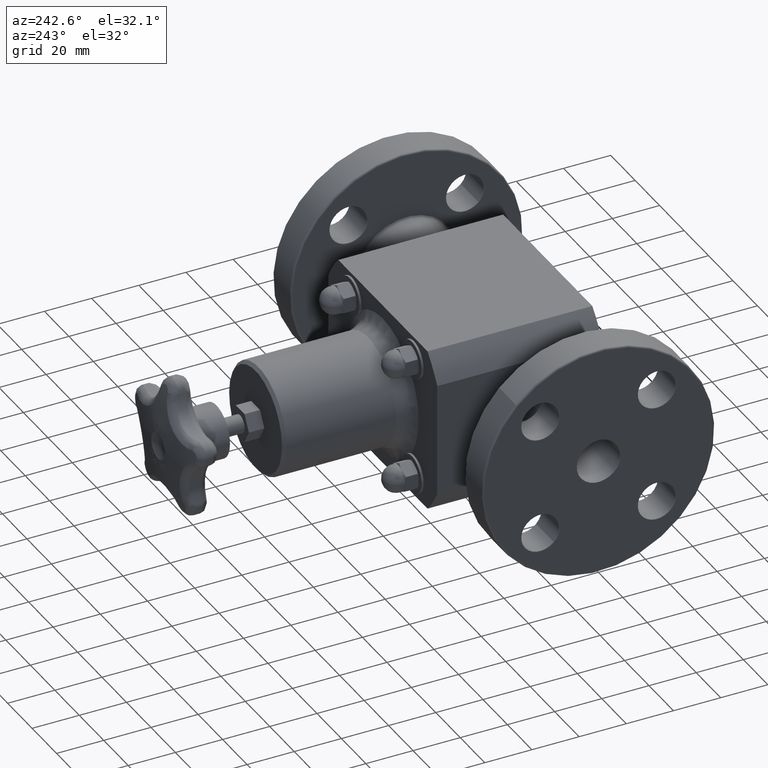
[diagram: clean part render]
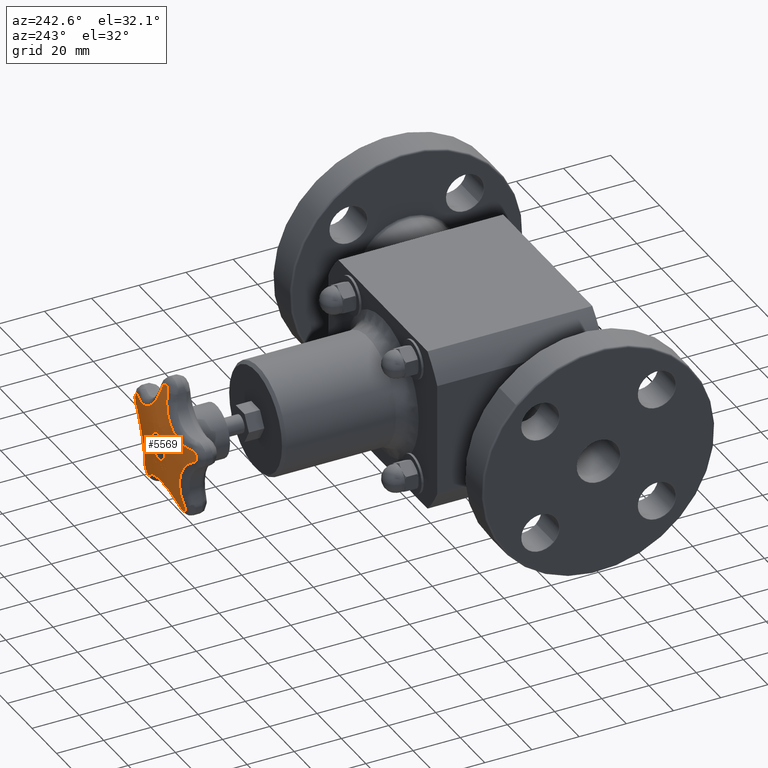
[diagram: same view with one face highlighted and labeled with its STEP entity id]
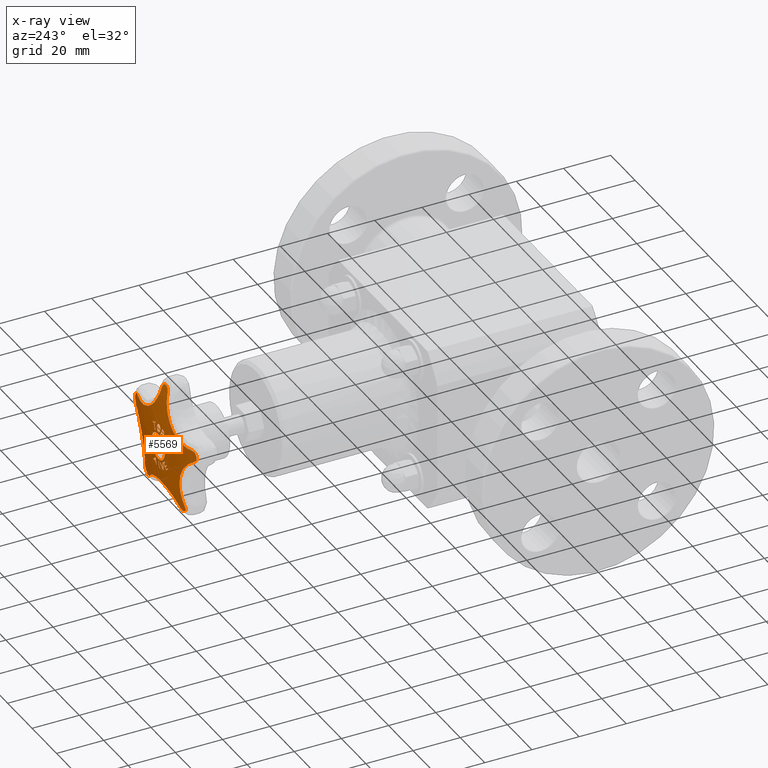
[diagram: x-ray of the same camera — body ghosted, the highlighted face saturated]
A machine part, auxiliary view. The second image highlights one B-rep face of the part: STEP entity #5569.
The next image is the same camera in x-ray: the body ghosted, the highlighted face saturated — about 0% of this face is hidden behind the body in this view.
In plain terms, the highlighted spherical surface has radius 101.6 mm.
Its self-contained STEP definition (entity closure, byte-faithful):
#2377=CARTESIAN_POINT('',(0.085862900185211,6.492578033837449,-0.334336098257463));
#2378=VERTEX_POINT('',#2377);
#2385=CARTESIAN_POINT('',(0.080862571524474,6.490070388788941,-0.364135061299997));
#2386=VERTEX_POINT('',#2385);
#2387=CARTESIAN_POINT('',(0.138077283113868,2.507499999999999,-0.023169658459773));
#2388=DIRECTION('',(0.986211736099962,-3.834945E-035,-0.165488403154721));
#2389=DIRECTION('',(0.165488403154721,2.285398E-034,0.986211736099962));
#2390=AXIS2_PLACEMENT_3D('',#2387,#2388,#2389);
#2391=CIRCLE('',#2390,3.997548977913186);
#2392=EDGE_CURVE('',#2386,#2378,#2391,.T.);
#2410=CARTESIAN_POINT('',(0.066931145986275,6.490560100352849,-0.361597094393902));
#2411=VERTEX_POINT('',#2410);
#2412=CARTESIAN_POINT('',(-0.061608234058828,2.507499999999999,-0.338180345563004));
#2413=DIRECTION('',(-0.179225881333302,0.0,-0.983807950496590));
#2414=DIRECTION('',(0.0,-1.0,0.0));
#2415=AXIS2_PLACEMENT_3D('',#2412,#2413,#2414);
#2416=CIRCLE('',#2415,3.985202438944732);
#2417=EDGE_CURVE('',#2411,#2386,#2416,.T.);
#2435=CARTESIAN_POINT('',(0.086359266902230,6.499345606544357,-0.240230577846814));
#2436=VERTEX_POINT('',#2435);
#2437=CARTESIAN_POINT('',(0.121696449326066,2.507499999999999,-0.019480935927100));
#2438=DIRECTION('',(-0.987428598717144,3.662935E-035,0.158065690254078));
#2439=DIRECTION('',(-0.158065690254078,-2.288218E-034,-0.987428598717144));
#2440=AXIS2_PLACEMENT_3D('',#2437,#2438,#2439);
#2441=CIRCLE('',#2440,3.998100857576862);
#2442=EDGE_CURVE('',#2436,#2411,#2441,.T.);
#2460=CARTESIAN_POINT('',(0.178491128782160,6.490560100243761,-0.321516958794137));
#2461=VERTEX_POINT('',#2460);
#2462=CARTESIAN_POINT('',(-0.081379549747351,2.507499999999999,-0.092237461550079));
#2463=DIRECTION('',(0.661592173204071,0.0,0.749863851879202));
#2464=DIRECTION('',(0.0,1.0,0.0));
#2465=AXIS2_PLACEMENT_3D('',#2462,#2463,#2464);
#2466=CIRCLE('',#2465,3.998108255108873);
#2467=EDGE_CURVE('',#2461,#2436,#2466,.T.);
#2503=CARTESIAN_POINT('',(0.169360113250167,6.490070388702392,-0.332340564889026));
#2504=VERTEX_POINT('',#2503);
#2505=CARTESIAN_POINT('',(0.262739148876333,2.507499999999999,-0.221652121134103));
#2506=DIRECTION('',(0.764340282334966,0.0,-0.644813099122609));
#2507=DIRECTION('',(0.0,-1.0,0.0));
#2508=AXIS2_PLACEMENT_3D('',#2505,#2506,#2507);
#2509=CIRCLE('',#2508,3.985202438627741);
#2510=EDGE_CURVE('',#2504,#2461,#2509,.T.);
#2528=CARTESIAN_POINT('',(0.146539084429404,6.492578033778148,-0.312536976105990));
#2529=VERTEX_POINT('',#2528);
#2530=CARTESIAN_POINT('',(-0.091762441742962,2.507499999999999,-0.105744133077216));
#2531=DIRECTION('',(-0.655409775395539,0.0,-0.755273477831686));
#2532=DIRECTION('',(0.0,-1.0,0.0));
#2533=AXIS2_PLACEMENT_3D('',#2530,#2531,#2532);
#2534=CIRCLE('',#2533,3.997548978137118);
#2535=EDGE_CURVE('',#2529,#2504,#2534,.T.);
#2553=CARTESIAN_POINT('',(0.116200988857743,2.507499999999999,-0.323436538421051));
#2554=DIRECTION('',(0.338111065893150,0.0,-0.941106214579735));
#2555=DIRECTION('',(0.0,-1.0,0.0));
#2556=AXIS2_PLACEMENT_3D('',#2553,#2554,#2555);
#2557=CIRCLE('',#2556,3.985208418113498);
#2558=EDGE_CURVE('',#2378,#2529,#2557,.T.);
#2588=CARTESIAN_POINT('',(0.037834369669133,6.498204436490725,0.269901206082852));
#2589=VERTEX_POINT('',#2588);
#2596=CARTESIAN_POINT('',(-0.000813251585510,6.499463335806677,0.253432563411025));
#2597=VERTEX_POINT('',#2596);
#2598=CARTESIAN_POINT('',(-0.000813251585510,6.499463335806677,0.253432563411025));
#2599=CARTESIAN_POINT('',(0.004822604549693,6.499463267161416,0.253451729844247));
#2600=CARTESIAN_POINT('',(0.010434056143418,6.499408968571549,0.254137147028971));
#2601=CARTESIAN_POINT('',(0.019829419967589,6.499191776701514,0.256945437338924));
#2602=CARTESIAN_POINT('',(0.023603879105451,6.499063271092423,0.258616838560289));
#2603=CARTESIAN_POINT('',(0.031162797321007,6.498707503911847,0.263275608997046));
#2604=CARTESIAN_POINT('',(0.034718544485056,6.498475224151669,0.266334166676061));
#2605=CARTESIAN_POINT('',(0.037834369669133,6.498204436490725,0.269901206082852));
#2606=B_SPLINE_CURVE_WITH_KNOTS('',3,(#2598,#2599,#2600,#2601,#2602,#2603,#2604,#2605),.UNSPECIFIED.,.F.,.U.,(4,2,2,4),(0.0,0.042945472093289,0.074729953679080,0.111130521126663),.UNSPECIFIED.);
#2607=EDGE_CURVE('',#2597,#2589,#2606,.T.);
#2640=CARTESIAN_POINT('',(0.051972176469609,6.494648590963243,0.316140801626154));
#2641=VERTEX_POINT('',#2640);
#2648=CARTESIAN_POINT('',(0.037834369669133,6.498204436490725,0.269901206082852));
#2649=CARTESIAN_POINT('',(0.041442739555291,6.497886429832898,0.274097371770597));
#2650=CARTESIAN_POINT('',(0.044216393332118,6.497526143654532,0.278867364485766));
#2651=CARTESIAN_POINT('',(0.051175872144373,6.496247534047897,0.295695352673442));
#2652=CARTESIAN_POINT('',(0.052000310715352,6.495304176149833,0.307867975918427));
#2653=CARTESIAN_POINT('',(0.051972176469609,6.494648590963243,0.316140801626154));
#2654=B_SPLINE_CURVE_WITH_KNOTS('',3,(#2648,#2649,#2650,#2651,#2652,#2653),.UNSPECIFIED.,.F.,.U.,(4,2,4),(0.0,0.042240697270331,0.139117363804144),.UNSPECIFIED.);
#2655=EDGE_CURVE('',#2589,#2641,#2654,.T.);
#2681=CARTESIAN_POINT('',(0.037422621985947,6.490875481075144,0.362380082417699));
#2682=VERTEX_POINT('',#2681);
#2689=CARTESIAN_POINT('',(0.051972176469609,6.494648590963243,0.316140801626154));
#2690=CARTESIAN_POINT('',(0.051955724861658,6.494265235014526,0.320978368143261));
#2691=CARTESIAN_POINT('',(0.051649887753166,6.493873160763517,0.325860197870603));
#2692=CARTESIAN_POINT('',(0.050134657362984,6.493046460787355,0.336059631335726));
#2693=CARTESIAN_POINT('',(0.048942330808374,6.492679768741239,0.340537076610657));
#2694=CARTESIAN_POINT('',(0.045132529339032,6.491814489793273,0.351068251626343));
#2695=CARTESIAN_POINT('',(0.041865078415885,6.491314249290123,0.357098260899482));
#2696=CARTESIAN_POINT('',(0.037422621985947,6.490875481075144,0.362380082417699));
#2697=B_SPLINE_CURVE_WITH_KNOTS('',3,(#2689,#2690,#2691,#2692,#2693,#2694,#2695,#2696),.UNSPECIFIED.,.F.,.U.,(4,2,2,4),(0.0,0.036978033263811,0.078812994269673,0.145814753845857),.UNSPECIFIED.);
#2698=EDGE_CURVE('',#2641,#2682,#2697,.T.);
#2726=CARTESIAN_POINT('',(-0.001238542349022,6.489552846207735,0.378488567887761));
#2727=VERTEX_POINT('',#2726);
#2734=CARTESIAN_POINT('',(0.037422621985947,6.490875481075145,0.362380082417699));
#2735=CARTESIAN_POINT('',(0.034954443929450,6.490644692501276,0.365171856276013));
#2736=CARTESIAN_POINT('',(0.032197988751061,6.490440415363388,0.367645041378230));
#2737=CARTESIAN_POINT('',(0.025433171661516,6.490054380883788,0.372335971569167));
#2738=CARTESIAN_POINT('',(0.021382576080450,6.489892027163673,0.374321631798851));
#2739=CARTESIAN_POINT('',(0.014161922593872,6.489697132621298,0.376716303028089));
#2740=CARTESIAN_POINT('',(0.011126297743766,6.489640822220747,0.377412789087582));
#2741=CARTESIAN_POINT('',(0.004967186895549,6.489568654773589,0.378304358121797));
#2742=CARTESIAN_POINT('',(0.001864839243269,6.489552808314178,0.378499121875412));
#2743=CARTESIAN_POINT('',(-0.001238542349022,6.489552846207735,0.378488567887761));
#2744=B_SPLINE_CURVE_WITH_KNOTS('',3,(#2734,#2735,#2736,#2737,#2738,#2739,#2740,#2741,#2742,#2743),.UNSPECIFIED.,.F.,.U.,(4,2,2,2,4),(0.0,0.028449418287417,0.062797366334246,0.086669104210055,0.110412733579470),.UNSPECIFIED.);
#2745=EDGE_CURVE('',#2682,#2727,#2744,.T.);
#2931=CARTESIAN_POINT('',(-0.039886494311879,6.490875481072099,0.362117169387378));
#2932=VERTEX_POINT('',#2931);
#2939=CARTESIAN_POINT('',(-0.001238542349022,6.489552846207735,0.378488567887761));
#2940=CARTESIAN_POINT('',(-0.006745334190294,6.489552913447912,0.378469840376704));
#2941=CARTESIAN_POINT('',(-0.012222719771290,6.489603190919957,0.377803010782852));
#2942=CARTESIAN_POINT('',(-0.022169110236763,6.489836259202794,0.374873454632416));
#2943=CARTESIAN_POINT('',(-0.025880772573738,6.489983982792515,0.373045650941543));
#2944=CARTESIAN_POINT('',(-0.032976239086434,6.490326456239560,0.368822005397033));
#2945=CARTESIAN_POINT('',(-0.036677483482774,6.490576120274293,0.365763676003977));
#2946=CARTESIAN_POINT('',(-0.039886494311879,6.490875481072099,0.362117169387378));
#2947=B_SPLINE_CURVE_WITH_KNOTS('',3,(#2939,#2940,#2941,#2942,#2943,#2944,#2945,#2946),.UNSPECIFIED.,.F.,.U.,(4,2,2,4),(0.0,0.041961996486355,0.079020325656231,0.132098515306939),.UNSPECIFIED.);
#2948=EDGE_CURVE('',#2727,#2932,#2947,.T.);
#2974=CARTESIAN_POINT('',(-0.054121214575585,6.494648590959068,0.315779998964419));
#2975=VERTEX_POINT('',#2974);
#2982=CARTESIAN_POINT('',(-0.039886494311879,6.490875481072099,0.362117169387378));
#2983=CARTESIAN_POINT('',(-0.043384531614640,6.491215540252459,0.357991135129826));
#2984=CARTESIAN_POINT('',(-0.046110522559888,6.491601304155911,0.353327026506887));
#2985=CARTESIAN_POINT('',(-0.049655140330850,6.492287322165349,0.344989572698873));
#2986=CARTESIAN_POINT('',(-0.051408401706368,6.492680648419752,0.340203251638015));
#2987=CARTESIAN_POINT('',(-0.053714336300565,6.493694761028934,0.327721858865083));
#2988=CARTESIAN_POINT('',(-0.054141415064118,6.494177878462815,0.321719917253611));
#2989=CARTESIAN_POINT('',(-0.054121214575585,6.494648590959069,0.315779998964419));
#2990=B_SPLINE_CURVE_WITH_KNOTS('',3,(#2982,#2983,#2984,#2985,#2986,#2987,#2988,#2989),.UNSPECIFIED.,.F.,.U.,(4,2,2,4),(0.0,0.041300163745689,0.069239721804254,0.093823977580811),.UNSPECIFIED.);
#2991=EDGE_CURVE('',#2932,#2975,#2990,.T.);
#3017=CARTESIAN_POINT('',(-0.039571990800137,6.498205379604828,0.269637962344318));
#3018=VERTEX_POINT('',#3017);
#3025=CARTESIAN_POINT('',(-0.054121214575585,6.494648590959070,0.315779998964419));
#3026=CARTESIAN_POINT('',(-0.054104973183962,6.495027048439478,0.311004246190809));
#3027=CARTESIAN_POINT('',(-0.053791585087129,6.495402200783876,0.306211457940531));
#3028=CARTESIAN_POINT('',(-0.052375519715094,6.496143410979319,0.296655576028873));
#3029=CARTESIAN_POINT('',(-0.051258684496628,6.496507467278865,0.291916990166382));
#3030=CARTESIAN_POINT('',(-0.047377403862622,6.497352193214817,0.280860112488070));
#3031=CARTESIAN_POINT('',(-0.044132654634130,6.497811607413357,0.274796561836271));
#3032=CARTESIAN_POINT('',(-0.039571990800137,6.498205379604828,0.269637962344318));
#3033=B_SPLINE_CURVE_WITH_KNOTS('',3,(#3025,#3026,#3027,#3028,#3029,#3030,#3031,#3032),.UNSPECIFIED.,.F.,.U.,(4,2,2,4),(0.0,0.036505533163791,0.073822024429602,0.126837533468264),.UNSPECIFIED.);
#3034=EDGE_CURVE('',#2975,#3018,#3033,.T.);
#3061=CARTESIAN_POINT('',(-0.039571990800137,6.498205379604828,0.269637962344318));
#3062=CARTESIAN_POINT('',(-0.036994618978134,6.498426649193219,0.266741374653484));
#3063=CARTESIAN_POINT('',(-0.034125944551199,6.498624226597590,0.264155087526020));
#3064=CARTESIAN_POINT('',(-0.028127958870894,6.498941902899273,0.260022999604724));
#3065=CARTESIAN_POINT('',(-0.024119800176987,6.499119835051819,0.257727462092390));
#3066=CARTESIAN_POINT('',(-0.015614631027444,6.499330482346445,0.255058899401250));
#3067=CARTESIAN_POINT('',(-0.012615830697533,6.499382732516449,0.254406267976287));
#3068=CARTESIAN_POINT('',(-0.006666959610788,6.499448427235688,0.253597873925736));
#3069=CARTESIAN_POINT('',(-0.003741704705223,6.499463371475511,0.253422604320576));
#3070=CARTESIAN_POINT('',(-0.000813251586146,6.499463335806677,0.253432563411023));
#3071=B_SPLINE_CURVE_WITH_KNOTS('',3,(#3061,#3062,#3063,#3064,#3065,#3066,#3067,#3068,#3069,#3070),.UNSPECIFIED.,.F.,.U.,(4,2,2,2,4),(0.0,0.029592715149351,0.055552496815722,0.069221283901438,0.082236559754027),.UNSPECIFIED.);
#3072=EDGE_CURVE('',#3018,#2597,#3071,.T.);
#3346=CARTESIAN_POINT('',(-0.247118300170064,6.494930202010448,-0.198325313099392));
#3347=VERTEX_POINT('',#3346);
#3354=CARTESIAN_POINT('',(-0.207827658530652,6.495059962457521,-0.237008882018031));
#3355=VERTEX_POINT('',#3354);
#3356=CARTESIAN_POINT('',(-0.220785948703934,2.507499999999999,-0.224250808083116));
#3357=DIRECTION('',(0.701580297701931,0.0,0.712590405405847));
#3358=DIRECTION('',(0.0,1.0,0.0));
#3359=AXIS2_PLACEMENT_3D('',#3356,#3357,#3358);
#3360=CIRCLE('',#3359,3.987601426914302);
#3361=EDGE_CURVE('',#3355,#3347,#3360,.T.);
#3379=CARTESIAN_POINT('',(-0.176580613442933,6.498324840990898,-0.205271467783727));
#3380=VERTEX_POINT('',#3379);
#3381=CARTESIAN_POINT('',(0.012958290173282,2.507499999999999,-0.012758073934915));
#3382=DIRECTION('',(-0.712590405405847,0.0,0.701580297701931));
#3383=DIRECTION('',(0.0,1.0,0.0));
#3384=AXIS2_PLACEMENT_3D('',#3381,#3382,#3383);
#3385=CIRCLE('',#3384,3.999958664069575);
#3386=EDGE_CURVE('',#3380,#3355,#3385,.T.);
#3404=CARTESIAN_POINT('',(-0.218712377317294,6.498156275729467,-0.163790674304833));
#3405=VERTEX_POINT('',#3404);
#3406=CARTESIAN_POINT('',(-0.189538903616215,2.507499999999999,-0.192513393848812));
#3407=DIRECTION('',(-0.701580297701931,0.0,-0.712590405405848));
#3408=DIRECTION('',(0.0,-1.0,0.0));
#3409=AXIS2_PLACEMENT_3D('',#3406,#3407,#3408);
#3410=CIRCLE('',#3409,3.990866271526118);
#3411=EDGE_CURVE('',#3405,#3380,#3410,.T.);
#3429=CARTESIAN_POINT('',(-0.208751528883217,6.499092069880929,-0.153673507321845));
#3430=VERTEX_POINT('',#3429);
#3431=CARTESIAN_POINT('',(-0.029173473701078,2.507499999999999,0.028722719543979));
#3432=DIRECTION('',(-0.712590405405848,0.0,0.701580297701931));
#3433=DIRECTION('',(0.0,1.0,0.0));
#3434=AXIS2_PLACEMENT_3D('',#3431,#3432,#3433);
#3435=CIRCLE('',#3434,3.999790483739644);
#3436=EDGE_CURVE('',#3430,#3405,#3435,.T.);
#3454=CARTESIAN_POINT('',(-0.155255276069062,6.499156082813489,-0.206343199041756));
#3455=VERTEX_POINT('',#3454);
#3456=CARTESIAN_POINT('',(-0.179578055182138,2.507499999999999,-0.182396226865824));
#3457=DIRECTION('',(0.701580297701931,0.0,0.712590405405847));
#3458=DIRECTION('',(0.0,1.0,0.0));
#3459=AXIS2_PLACEMENT_3D('',#3456,#3457,#3458);
#3460=CIRCLE('',#3459,3.991802016448476);
#3461=EDGE_CURVE('',#3455,#3430,#3460,.T.);
#3479=CARTESIAN_POINT('',(-0.239444912833791,6.489646073155507,-0.291854048747284));
#3480=VERTEX_POINT('',#3479);
#3481=CARTESIAN_POINT('',(0.024322779113077,2.507499999999999,-0.023946972175932));
#3482=DIRECTION('',(0.712590405405848,0.0,-0.701580297701931));
#3483=DIRECTION('',(0.0,-1.0,0.0));
#3484=AXIS2_PLACEMENT_3D('',#3481,#3482,#3483);
#3485=CIRCLE('',#3484,3.999854365466301);
#3486=EDGE_CURVE('',#3480,#3455,#3485,.T.);
#3504=CARTESIAN_POINT('',(-0.292941165647946,6.489581907347238,-0.239184357027373));
#3505=VERTEX_POINT('',#3504);
#3506=CARTESIAN_POINT('',(-0.263767691946867,2.507499999999999,-0.267907076571351));
#3507=DIRECTION('',(-0.701580297701931,0.0,-0.712590405405847));
#3508=DIRECTION('',(0.0,-1.0,0.0));
#3509=AXIS2_PLACEMENT_3D('',#3506,#3507,#3508);
#3510=CIRCLE('',#3509,3.982292355290859);
#3511=EDGE_CURVE('',#3505,#3480,#3510,.T.);
#3529=CARTESIAN_POINT('',(-0.282980317213869,6.490896837187415,-0.229067190044385));
#3530=VERTEX_POINT('',#3529);
#3531=CARTESIAN_POINT('',(-0.029173473701079,2.507499999999999,0.028722719543979));
#3532=DIRECTION('',(-0.712590405405848,0.0,0.701580297701931));
#3533=DIRECTION('',(0.0,1.0,0.0));
#3534=AXIS2_PLACEMENT_3D('',#3531,#3532,#3533);
#3535=CIRCLE('',#3534,3.999790483739644);
#3536=EDGE_CURVE('',#3530,#3505,#3535,.T.);
#3554=CARTESIAN_POINT('',(-0.240848553339509,6.491065709633236,-0.270547983523279));
#3555=VERTEX_POINT('',#3554);
#3556=CARTESIAN_POINT('',(-0.253806843512791,2.507499999999999,-0.257789909588363));
#3557=DIRECTION('',(0.701580297701931,0.0,0.712590405405847));
#3558=DIRECTION('',(0.0,1.0,0.0));
#3559=AXIS2_PLACEMENT_3D('',#3556,#3557,#3558);
#3560=CIRCLE('',#3559,3.983607215665281);
#3561=EDGE_CURVE('',#3555,#3530,#3560,.T.);
#3579=CARTESIAN_POINT('',(-0.217788506964729,6.493914037971874,-0.247126049001019));
#3580=VERTEX_POINT('',#3579);
#3581=CARTESIAN_POINT('',(0.012958290173282,2.507499999999999,-0.012758073934915));
#3582=DIRECTION('',(-0.712590405405848,0.0,0.701580297701930));
#3583=DIRECTION('',(0.0,1.0,0.0));
#3584=AXIS2_PLACEMENT_3D('',#3581,#3582,#3583);
#3585=CIRCLE('',#3584,3.999958664069575);
#3586=EDGE_CURVE('',#3580,#3555,#3585,.T.);
#3604=CARTESIAN_POINT('',(-0.257079148604141,6.493784240222976,-0.208442480082380));
#3605=VERTEX_POINT('',#3604);
#3606=CARTESIAN_POINT('',(-0.230746797138011,2.507499999999999,-0.234367975066104));
#3607=DIRECTION('',(-0.701580297701931,0.0,-0.712590405405848));
#3608=DIRECTION('',(0.0,-1.0,0.0));
#3609=AXIS2_PLACEMENT_3D('',#3606,#3607,#3608);
#3610=CIRCLE('',#3609,3.986455514347798);
#3611=EDGE_CURVE('',#3605,#3580,#3610,.T.);
#3629=CARTESIAN_POINT('',(-0.026332351466130,2.507499999999999,0.025925494983725));
#3630=DIRECTION('',(-0.712590405405848,0.0,0.701580297701931));
#3631=DIRECTION('',(0.0,1.0,0.0));
#3632=AXIS2_PLACEMENT_3D('',#3629,#3630,#3631);
#3633=CIRCLE('',#3632,3.999829305854953);
#3634=EDGE_CURVE('',#3347,#3605,#3633,.T.);
#3656=CARTESIAN_POINT('',(0.104679989358764,6.489501420719623,0.364289425065761));
#3657=VERTEX_POINT('',#3656);
#3664=CARTESIAN_POINT('',(0.193260657033255,6.489499064924951,0.326088585172621));
#3665=VERTEX_POINT('',#3664);
#3666=CARTESIAN_POINT('',(0.148881029224559,2.507499999999999,0.345227513574776));
#3667=DIRECTION('',(0.395999965100261,0.0,0.918250525532435));
#3668=DIRECTION('',(0.0,1.0,0.0));
#3669=AXIS2_PLACEMENT_3D('',#3666,#3667,#3668);
#3670=CIRCLE('',#3669,3.982292355290859);
#3671=EDGE_CURVE('',#3665,#3657,#3670,.T.);
#3696=CARTESIAN_POINT('',(0.099057688326105,6.490816377129185,0.351252350992701));
#3697=VERTEX_POINT('',#3696);
#3704=CARTESIAN_POINT('',(-0.044201039865794,2.507499999999999,0.019061911490985));
#3705=DIRECTION('',(-0.918250525532435,9.176705E-035,0.395999965100260));
#3706=DIRECTION('',(-0.395999965100260,-2.127908E-034,-0.918250525532435));
#3707=AXIS2_PLACEMENT_3D('',#3704,#3705,#3706);
#3708=CIRCLE('',#3707,3.999710353463748);
#3709=EDGE_CURVE('',#3657,#3697,#3708,.T.);
#3729=CARTESIAN_POINT('',(0.136025829875741,6.491099428197434,0.335309661763104));
#3730=VERTEX_POINT('',#3729);
#3737=CARTESIAN_POINT('',(0.143258728191899,2.507499999999999,0.332190439501716));
#3738=DIRECTION('',(-0.395999965100261,0.0,-0.918250525532434));
#3739=DIRECTION('',(0.0,-1.0,0.0));
#3740=AXIS2_PLACEMENT_3D('',#3737,#3738,#3739);
#3741=CIRCLE('',#3740,3.983607215665281);
#3742=EDGE_CURVE('',#3697,#3730,#3741,.T.);
#3762=CARTESIAN_POINT('',(0.094128134509071,6.499294244967611,0.238156671410437));
#3763=VERTEX_POINT('',#3762);
#3770=CARTESIAN_POINT('',(-0.007232898316158,2.507499999999999,0.003119222261389));
#3771=DIRECTION('',(-0.918250525532435,9.176705E-035,0.395999965100261));
#3772=DIRECTION('',(-0.395999965100261,-2.127908E-034,-0.918250525532435));
#3773=AXIS2_PLACEMENT_3D('',#3770,#3771,#3772);
#3774=CIRCLE('',#3773,3.999992244446786);
#3775=EDGE_CURVE('',#3730,#3763,#3774,.T.);
#3795=CARTESIAN_POINT('',(0.108772519084289,6.499293856457105,0.231841209976490));
#3796=VERTEX_POINT('',#3795);
#3803=CARTESIAN_POINT('',(0.101361032825230,2.507499999999999,0.235037449149048));
#3804=DIRECTION('',(-0.395999965100260,0.0,-0.918250525532435));
#3805=DIRECTION('',(0.0,-1.0,0.0));
#3806=AXIS2_PLACEMENT_3D('',#3803,#3804,#3805);
#3807=CIRCLE('',#3806,3.991802016448476);
#3808=EDGE_CURVE('',#3763,#3796,#3807,.T.);
#3828=CARTESIAN_POINT('',(0.150670214450959,6.491099038887708,0.328994200329158));
#3829=VERTEX_POINT('',#3828);
#3836=CARTESIAN_POINT('',(0.007411486259060,2.507499999999999,-0.003196239172558));
#3837=DIRECTION('',(0.918250525532434,-9.176705E-035,-0.395999965100261));
#3838=DIRECTION('',(0.395999965100261,2.127908E-034,0.918250525532434));
#3839=AXIS2_PLACEMENT_3D('',#3836,#3837,#3838);
#3840=CIRCLE('',#3839,3.999991856732535);
#3841=EDGE_CURVE('',#3796,#3829,#3840,.T.);
#3861=CARTESIAN_POINT('',(0.187638356000596,6.490814022112200,0.313051511099561));
#3862=VERTEX_POINT('',#3861);
#3869=CARTESIAN_POINT('',(0.143258728191899,2.507499999999999,0.332190439501716));
#3870=DIRECTION('',(-0.395999965100261,0.0,-0.918250525532435));
#3871=DIRECTION('',(0.0,-1.0,0.0));
#3872=AXIS2_PLACEMENT_3D('',#3869,#3870,#3871);
#3873=CIRCLE('',#3872,3.983607215665281);
#3874=EDGE_CURVE('',#3829,#3862,#3873,.T.);
#3893=CARTESIAN_POINT('',(0.044379627808697,2.507499999999999,-0.019138928402155));
#3894=DIRECTION('',(0.918250525532435,-9.176705E-035,-0.395999965100259));
#3895=DIRECTION('',(0.395999965100259,2.127908E-034,0.918250525532435));
#3896=AXIS2_PLACEMENT_3D('',#3893,#3894,#3895);
#3897=CIRCLE('',#3896,3.999708008099489);
#3898=EDGE_CURVE('',#3862,#3665,#3897,.T.);
#3997=CARTESIAN_POINT('',(-0.132776476717596,6.499152316888536,-0.221545002897484));
#3998=VERTEX_POINT('',#3997);
#4005=CARTESIAN_POINT('',(-0.141106922486269,6.491658741024817,-0.326447488490870));
#4006=VERTEX_POINT('',#4005);
#4007=CARTESIAN_POINT('',(-0.114461481346885,2.507499999999999,0.009089538322841));
#4008=DIRECTION('',(0.996861755361221,-1.834463E-035,-0.079162116559279));
#4009=DIRECTION('',(0.079162116559279,2.310078E-034,0.996861755361221));
#4010=AXIS2_PLACEMENT_3D('',#4007,#4008,#4009);
#4011=CIRCLE('',#4010,3.998351654067081);
#4012=EDGE_CURVE('',#4006,#3998,#4011,.T.);
#4030=CARTESIAN_POINT('',(-0.071391562909479,6.499171847508762,-0.247909472492114));
#4031=VERTEX_POINT('',#4030);
#4032=CARTESIAN_POINT('',(0.083150511259561,2.507499999999999,-0.073809704991097));
#4033=DIRECTION('',(-0.747864056465855,0.0,0.663851905959784));
#4034=DIRECTION('',(0.0,1.0,0.0));
#4035=AXIS2_PLACEMENT_3D('',#4032,#4033,#4034);
#4036=CIRCLE('',#4035,3.998454466406539);
#4037=EDGE_CURVE('',#4031,#4006,#4036,.T.);
#4055=CARTESIAN_POINT('',(-0.055754940032593,6.498998131883168,-0.254625312636306));
#4056=VERTEX_POINT('',#4055);
#4057=CARTESIAN_POINT('',(-0.101011795140333,2.507499999999999,-0.235187752062933));
#4058=DIRECTION('',(0.394635554071923,0.0,0.918837732933485));
#4059=DIRECTION('',(0.0,1.0,0.0));
#4060=AXIS2_PLACEMENT_3D('',#4057,#4058,#4059);
#4061=CIRCLE('',#4060,3.991802016448476);
#4062=EDGE_CURVE('',#4056,#4031,#4061,.T.);
#4080=CARTESIAN_POINT('',(-0.140907158403199,6.489784076964297,-0.348652696916783));
#4081=VERTEX_POINT('',#4080);
#4082=CARTESIAN_POINT('',(0.096057099062330,2.507499999999999,-0.086990350077203));
#4083=DIRECTION('',(0.741222642945153,0.0,-0.671259259590065));
#4084=DIRECTION('',(0.0,-1.0,0.0));
#4085=AXIS2_PLACEMENT_3D('',#4082,#4083,#4084);
#4086=CIRCLE('',#4085,3.997900162924680);
#4087=EDGE_CURVE('',#4081,#4056,#4086,.T.);
#4105=CARTESIAN_POINT('',(-0.156722485541535,6.489781975401069,-0.341860104313799));
#4106=VERTEX_POINT('',#4105);
#4107=CARTESIAN_POINT('',(-0.148368062214239,2.507499999999999,-0.345448281377657));
#4108=DIRECTION('',(-0.394635554071924,0.0,-0.918837732933484));
#4109=DIRECTION('',(0.0,-1.0,0.0));
#4110=AXIS2_PLACEMENT_3D('',#4107,#4108,#4109);
#4111=CIRCLE('',#4110,3.982292355290859);
#4112=EDGE_CURVE('',#4106,#4081,#4111,.T.);
#4130=CARTESIAN_POINT('',(-0.147698282548681,6.498978628851238,-0.215136172588455));
#4131=VERTEX_POINT('',#4130);
#4132=CARTESIAN_POINT('',(-0.131710197155649,2.507499999999999,0.009379282501569));
#4133=DIRECTION('',(-0.997474063033574,1.646052E-035,0.071031637847470));
#4134=DIRECTION('',(-0.071031637847470,-2.311497E-034,-0.997474063033574));
#4135=AXIS2_PLACEMENT_3D('',#4132,#4133,#4134);
#4136=CIRCLE('',#4135,3.997819962557716);
#4137=EDGE_CURVE('',#4131,#4106,#4136,.T.);
#4155=CARTESIAN_POINT('',(-0.101011795140333,2.507499999999999,-0.235187752062933));
#4156=DIRECTION('',(0.394635554071923,0.0,0.918837732933485));
#4157=DIRECTION('',(0.0,1.0,0.0));
#4158=AXIS2_PLACEMENT_3D('',#4155,#4156,#4157);
#4159=CIRCLE('',#4158,3.991802016448476);
#4160=EDGE_CURVE('',#3998,#4131,#4159,.T.);
#4182=CARTESIAN_POINT('',(-0.069865805707577,6.499162659387477,0.248491414025747));
#4183=VERTEX_POINT('',#4182);
#4190=CARTESIAN_POINT('',(-0.084532147717997,6.499264063873194,0.242227113207306));
#4191=VERTEX_POINT('',#4190);
#4192=CARTESIAN_POINT('',(-0.100539922146019,2.507499999999999,0.235389858602194));
#4193=DIRECTION('',(0.392792028171763,0.0,-0.919627328108899));
#4194=DIRECTION('',(0.0,-1.0,0.0));
#4195=AXIS2_PLACEMENT_3D('',#4192,#4193,#4194);
#4196=CIRCLE('',#4195,3.991802016448476);
#4197=EDGE_CURVE('',#4191,#4183,#4196,.T.);
#4222=CARTESIAN_POINT('',(-0.117000849670728,6.489652665435393,0.358846694762692));
#4223=VERTEX_POINT('',#4222);
#4230=CARTESIAN_POINT('',(0.030674116438442,2.507499999999999,0.013101555423553));
#4231=DIRECTION('',(0.919627328108900,9.102366E-035,0.392792028171762));
#4232=DIRECTION('',(-0.392792028171762,2.131098E-034,0.919627328108900));
#4233=AXIS2_PLACEMENT_3D('',#4230,#4231,#4232);
#4234=CIRCLE('',#4233,3.999860928560668);
#4235=EDGE_CURVE('',#4183,#4223,#4234,.T.);
#4255=CARTESIAN_POINT('',(-0.144723813227011,6.489791062296546,0.347005638337589));
#4256=VERTEX_POINT('',#4255);
#4263=CARTESIAN_POINT('',(-0.147674966109170,2.507499999999999,0.345745139339140));
#4264=DIRECTION('',(-0.392792028171761,0.0,0.919627328108900));
#4265=DIRECTION('',(0.0,1.0,0.0));
#4266=AXIS2_PLACEMENT_3D('',#4263,#4264,#4265);
#4267=CIRCLE('',#4266,3.982292355290859);
#4268=EDGE_CURVE('',#4223,#4256,#4267,.T.);
#4294=CARTESIAN_POINT('',(-0.170668187046193,6.490392332671243,0.327781995050035));
#4295=VERTEX_POINT('',#4294);
#4302=CARTESIAN_POINT('',(-0.144723813227011,6.489791062296545,0.347005638337589));
#4303=CARTESIAN_POINT('',(-0.150088261328737,6.489795762969324,0.344714370575645));
#4304=CARTESIAN_POINT('',(-0.155816045050092,6.489823287565297,0.341843284165149));
#4305=CARTESIAN_POINT('',(-0.163386369744122,6.489985173854674,0.336346581494136));
#4306=CARTESIAN_POINT('',(-0.167427829443181,6.490105667536206,0.332952450875757));
#4307=CARTESIAN_POINT('',(-0.170668187046193,6.490392332671243,0.327781995050034));
#4308=B_SPLINE_CURVE_WITH_KNOTS('',3,(#4302,#4303,#4304,#4305,#4306,#4307),.UNSPECIFIED.,.F.,.U.,(4,2,4),(0.0,0.044449644500484,0.071079555324561),.UNSPECIFIED.);
#4309=EDGE_CURVE('',#4256,#4295,#4308,.T.);
#4481=CARTESIAN_POINT('',(-0.172546135424800,6.492815390487376,0.295785512651346));
#4482=VERTEX_POINT('',#4481);
#4489=CARTESIAN_POINT('',(-0.170668187046193,6.490392332671244,0.327781995050034));
#4490=CARTESIAN_POINT('',(-0.172986087574699,6.490591167831977,0.324159065981219));
#4491=CARTESIAN_POINT('',(-0.174567491806914,6.490838750576290,0.320245416315975));
#4492=CARTESIAN_POINT('',(-0.176129629330600,6.491442814318248,0.311764074180629));
#4493=CARTESIAN_POINT('',(-0.175887094211243,6.491718772794618,0.308335133779387));
#4494=CARTESIAN_POINT('',(-0.175001277294207,6.492211349698701,0.302427671544135));
#4495=CARTESIAN_POINT('',(-0.173928522803411,6.492515328212924,0.299022037632058));
#4496=CARTESIAN_POINT('',(-0.172546135424800,6.492815390487374,0.295785512651346));
#4497=B_SPLINE_CURVE_WITH_KNOTS('',3,(#4489,#4490,#4491,#4492,#4493,#4494,#4495,#4496),.UNSPECIFIED.,.F.,.U.,(4,2,2,4),(0.0,0.032808337471925,0.065876100718766,0.113361042324126),.UNSPECIFIED.);
#4498=EDGE_CURVE('',#4295,#4482,#4497,.T.);
#4526=CARTESIAN_POINT('',(-0.152421846635908,6.495095568897899,0.275407261294860));
#4527=VERTEX_POINT('',#4526);
#4534=CARTESIAN_POINT('',(-0.172546135424800,6.492815390487376,0.295785512651346));
#4535=CARTESIAN_POINT('',(-0.171321928932305,6.493081117873359,0.292919329875214));
#4536=CARTESIAN_POINT('',(-0.169804261392693,6.493343863950836,0.290215418914447));
#4537=CARTESIAN_POINT('',(-0.165910493783782,6.493891779064992,0.284897251377497));
#4538=CARTESIAN_POINT('',(-0.163657217073227,6.494148699667298,0.282590003201546));
#4539=CARTESIAN_POINT('',(-0.158684575838191,6.494639217410808,0.278482510744070));
#4540=CARTESIAN_POINT('',(-0.155702157987997,6.494881831002916,0.276686491070645));
#4541=CARTESIAN_POINT('',(-0.152421846635908,6.495095568897900,0.275407261294860));
#4542=B_SPLINE_CURVE_WITH_KNOTS('',3,(#4534,#4535,#4536,#4537,#4538,#4539,#4540,#4541),.UNSPECIFIED.,.F.,.U.,(4,2,2,4),(0.0,0.023835253161564,0.050398261842090,0.082258015573386),.UNSPECIFIED.);
#4543=EDGE_CURVE('',#4482,#4527,#4542,.T.);
#4571=CARTESIAN_POINT('',(-0.114533366717580,6.496179920008204,0.278055037055050));
#4572=VERTEX_POINT('',#4571);
#4579=CARTESIAN_POINT('',(-0.152421846635908,6.495095568897899,0.275407261294860));
#4580=CARTESIAN_POINT('',(-0.149545358874605,6.495283458798840,0.274278789378133));
#4581=CARTESIAN_POINT('',(-0.146578636591112,6.495448267506801,0.273482909697010));
#4582=CARTESIAN_POINT('',(-0.136733843929597,6.495902980470306,0.272015981091797));
#4583=CARTESIAN_POINT('',(-0.131190118846058,6.496021826509042,0.272931617342636));
#4584=CARTESIAN_POINT('',(-0.123610109338990,6.496155761130769,0.274533252414456));
#4585=CARTESIAN_POINT('',(-0.118915137061145,6.496184566599569,0.276183491476070));
#4586=CARTESIAN_POINT('',(-0.114533366717580,6.496179920008202,0.278055037055050));
#4587=B_SPLINE_CURVE_WITH_KNOTS('',3,(#4579,#4580,#4581,#4582,#4583,#4584,#4585,#4586),.UNSPECIFIED.,.F.,.U.,(4,2,2,4),(0.0,0.023588710723971,0.075924731072629,0.159708716541644),.UNSPECIFIED.);
#4588=EDGE_CURVE('',#4527,#4572,#4587,.T.);
#4608=CARTESIAN_POINT('',(-0.102102747574602,6.496143834417175,0.283364413968241));
#4609=VERTEX_POINT('',#4608);
#4616=CARTESIAN_POINT('',(-0.118110522002623,2.507499999999999,0.276527159363130));
#4617=DIRECTION('',(0.392792028171763,0.0,-0.919627328108899));
#4618=DIRECTION('',(0.0,-1.0,0.0));
#4619=AXIS2_PLACEMENT_3D('',#4616,#4617,#4618);
#4620=CIRCLE('',#4619,3.988681816681650);
#4621=EDGE_CURVE('',#4572,#4609,#4620,.T.);
#4640=CARTESIAN_POINT('',(0.016007774428022,2.507499999999999,0.006837254605111));
#4641=DIRECTION('',(-0.919627328108900,-9.102366E-035,-0.392792028171761));
#4642=DIRECTION('',(0.392792028171761,-2.131098E-034,-0.919627328108900));
#4643=AXIS2_PLACEMENT_3D('',#4640,#4641,#4642);
#4644=CIRCLE('',#4643,3.999962125209104);
#4645=EDGE_CURVE('',#4609,#4191,#4644,.T.);
#4876=CARTESIAN_POINT('',(-0.025446717491280,6.491118720077396,-0.360741399922220));
#4877=VERTEX_POINT('',#4876);
#4884=CARTESIAN_POINT('',(-0.015977407253327,6.499295876022473,-0.255559008112469));
#4885=VERTEX_POINT('',#4884);
#4886=CARTESIAN_POINT('',(0.006973418085276,2.507499999999999,-0.000627799559719));
#4887=DIRECTION('',(-0.995971991168664,2.077849E-035,0.089664891722048));
#4888=DIRECTION('',(-0.089664891722048,-2.308016E-034,-0.995971991168664));
#4889=AXIS2_PLACEMENT_3D('',#4886,#4887,#4888);
#4890=CIRCLE('',#4889,3.999993872158797);
#4891=EDGE_CURVE('',#4885,#4877,#4890,.T.);
#4909=CARTESIAN_POINT('',(-0.003483366237252,6.499254161384001,-0.256683815682170));
#4910=VERTEX_POINT('',#4909);
#4911=CARTESIAN_POINT('',(-0.022950825338604,2.507499999999999,-0.254931208552749));
#4912=DIRECTION('',(0.089664891722049,0.0,0.995971991168664));
#4913=DIRECTION('',(0.0,1.0,0.0));
#4914=AXIS2_PLACEMENT_3D('',#4911,#4912,#4913);
#4915=CIRCLE('',#4914,3.991802016448476);
#4916=EDGE_CURVE('',#4910,#4885,#4915,.T.);
#4934=CARTESIAN_POINT('',(-0.014077484044906,6.489918389468890,-0.374360248507997));
#4935=VERTEX_POINT('',#4934);
#4936=CARTESIAN_POINT('',(0.019467459101352,2.507499999999999,-0.001752607129421));
#4937=DIRECTION('',(0.995971991168664,-2.077849E-035,-0.089664891722048));
#4938=DIRECTION('',(0.089664891722048,2.308016E-034,0.995971991168664));
#4939=AXIS2_PLACEMENT_3D('',#4936,#4937,#4938);
#4940=CIRCLE('',#4939,3.999952243015458);
#4941=EDGE_CURVE('',#4935,#4910,#4940,.T.);
#4959=CARTESIAN_POINT('',(-0.053012402560118,6.489918389467350,-0.370855034221020));
#4960=VERTEX_POINT('',#4959);
#4961=CARTESIAN_POINT('',(-0.033544943146258,2.507499999999999,-0.372607641378576));
#4962=DIRECTION('',(-0.089664891722049,0.0,-0.995971991168664));
#4963=DIRECTION('',(0.0,-1.0,0.0));
#4964=AXIS2_PLACEMENT_3D('',#4961,#4962,#4963);
#4965=CIRCLE('',#4964,3.982466356716100);
#4966=EDGE_CURVE('',#4960,#4935,#4965,.T.);
#4984=CARTESIAN_POINT('',(-0.051887594990416,6.491076919809039,-0.358360993204945));
#4985=VERTEX_POINT('',#4984);
#4986=CARTESIAN_POINT('',(-0.019467459413860,2.507499999999999,0.001752607157556));
#4987=DIRECTION('',(-0.995971991168664,2.077849E-035,0.089664891722049));
#4988=DIRECTION('',(-0.089664891722049,-2.308016E-034,-0.995971991168664));
#4989=AXIS2_PLACEMENT_3D('',#4986,#4987,#4988);
#4990=CIRCLE('',#4989,3.999952243013925);
#4991=EDGE_CURVE('',#4985,#4960,#4990,.T.);
#5009=CARTESIAN_POINT('',(-0.032420135576556,2.507499999999999,-0.360113600362501));
#5010=DIRECTION('',(0.089664891722049,0.0,0.995971991168664));
#5011=DIRECTION('',(0.0,1.0,0.0));
#5012=AXIS2_PLACEMENT_3D('',#5009,#5010,#5011);
#5013=CIRCLE('',#5012,3.983624873107803);
#5014=EDGE_CURVE('',#4877,#4985,#5013,.T.);
#5036=CARTESIAN_POINT('',(0.158721080860086,6.498978628851238,-0.207137572435436));
#5037=VERTEX_POINT('',#5036);
#5044=CARTESIAN_POINT('',(0.169441733074488,6.499152316888536,-0.194939170438110));
#5045=VERTEX_POINT('',#5044);
#5046=CARTESIAN_POINT('',(0.192263240588120,2.507499999999999,-0.168971914223765));
#5047=DIRECTION('',(-0.751139115701745,0.0,0.660143945562481));
#5048=DIRECTION('',(0.0,1.0,0.0));
#5049=AXIS2_PLACEMENT_3D('',#5046,#5047,#5048);
#5050=CIRCLE('',#5049,3.991802016448476);
#5051=EDGE_CURVE('',#5045,#5037,#5050,.T.);
#5076=CARTESIAN_POINT('',(0.276397654900080,6.489781975401069,-0.255018832170284));
#5077=VERTEX_POINT('',#5076);
#5084=CARTESIAN_POINT('',(-0.049765265912092,2.507499999999999,-0.122306848883139));
#5085=DIRECTION('',(-0.376884729195410,0.0,-0.926260169120589));
#5086=DIRECTION('',(0.0,-1.0,0.0));
#5087=AXIS2_PLACEMENT_3D('',#5084,#5085,#5086);
#5088=CIRCLE('',#5087,3.997819962557716);
#5089=EDGE_CURVE('',#5037,#5077,#5088,.T.);
#5109=CARTESIAN_POINT('',(0.287760262336902,6.489784076964297,-0.242089986939585));
#5110=VERTEX_POINT('',#5109);
#5117=CARTESIAN_POINT('',(0.282399935586326,2.507499999999999,-0.248189188670305));
#5118=DIRECTION('',(0.751139115701747,0.0,-0.660143945562480));
#5119=DIRECTION('',(0.0,-1.0,0.0));
#5120=AXIS2_PLACEMENT_3D('',#5117,#5118,#5119);
#5121=CIRCLE('',#5120,3.982292355290859);
#5122=EDGE_CURVE('',#5077,#5110,#5121,.T.);
#5142=CARTESIAN_POINT('',(0.224778273247032,6.498998131883168,-0.131974963721373));
#5143=VERTEX_POINT('',#5142);
#5150=CARTESIAN_POINT('',(0.112492012560629,2.507499999999999,0.064341544874862));
#5151=DIRECTION('',(0.868042317271149,1.150542E-034,0.496490216848765));
#5152=DIRECTION('',(-0.496490216848765,2.011558E-034,0.868042317271149));
#5153=AXIS2_PLACEMENT_3D('',#5150,#5151,#5152);
#5154=CIRCLE('',#5153,3.997900162924679);
#5155=EDGE_CURVE('',#5110,#5143,#5154,.T.);
#5175=CARTESIAN_POINT('',(0.213544056854694,6.499171847508762,-0.144757720305397));
#5176=VERTEX_POINT('',#5175);
#5183=CARTESIAN_POINT('',(0.192263240588120,2.507499999999999,-0.168971914223764));
#5184=DIRECTION('',(-0.751139115701746,0.0,0.660143945562480));
#5185=DIRECTION('',(0.0,1.0,0.0));
#5186=AXIS2_PLACEMENT_3D('',#5183,#5184,#5185);
#5187=CIRCLE('',#5186,3.991802016448476);
#5188=EDGE_CURVE('',#5143,#5176,#5187,.T.);
#5208=CARTESIAN_POINT('',(0.266588010713152,6.491658741024817,-0.235393200538051));
#5209=VERTEX_POINT('',#5208);
#5216=CARTESIAN_POINT('',(0.095958453034011,2.507499999999999,0.056159196619243));
#5217=DIRECTION('',(-0.863059972225388,0.0,-0.505101459453755));
#5218=DIRECTION('',(0.0,-1.0,0.0));
#5219=AXIS2_PLACEMENT_3D('',#5216,#5217,#5218);
#5220=CIRCLE('',#5219,3.998454466406539);
#5221=EDGE_CURVE('',#5176,#5209,#5220,.T.);
#5240=CARTESIAN_POINT('',(-0.044140309788643,2.507499999999999,-0.105998506927259));
#5241=DIRECTION('',(0.384424403566333,0.0,0.923156475329437));
#5242=DIRECTION('',(0.0,1.0,0.0));
#5243=AXIS2_PLACEMENT_3D('',#5240,#5241,#5242);
#5244=CIRCLE('',#5243,3.998351654067081);
#5245=EDGE_CURVE('',#5209,#5045,#5244,.T.);
#5295=CARTESIAN_POINT('',(1.845801E-016,2.507499999999999,3.496765E-016));
#5296=DIRECTION('',(0.0,0.0,1.0));
#5297=DIRECTION('',(1.0,0.0,0.0));
#5298=AXIS2_PLACEMENT_3D('',#5295,#5296,#5297);
#5299=SPHERICAL_SURFACE('',#5298,4.0);
#5300=CARTESIAN_POINT('',(0.634239059988198,6.389776509861761,-0.725030975725085));
#5301=VERTEX_POINT('',#5300);
#5302=CARTESIAN_POINT('',(0.939272693013338,6.389776509861743,0.213766014920971));
#5303=VERTEX_POINT('',#5302);
#5304=CARTESIAN_POINT('',(0.634239059988199,6.389776509861761,-0.725030975725085));
#5305=CARTESIAN_POINT('',(0.609404925107207,6.402252050247244,-0.679953289228775));
#5306=CARTESIAN_POINT('',(0.579294282311888,6.419192489321329,-0.606734434534665));
#5307=CARTESIAN_POINT('',(0.556967756793658,6.436642802878600,-0.503681280134468));
#5308=CARTESIAN_POINT('',(0.546606062793471,6.450481061083568,-0.398945795551909));
#5309=CARTESIAN_POINT('',(0.555107512971297,6.458715754662392,-0.291155280212941));
#5310=CARTESIAN_POINT('',(0.582018111988585,6.460693845877527,-0.188722328555066));
#5311=CARTESIAN_POINT('',(0.621145897609058,6.458618819765415,-0.088872736691165));
#5312=CARTESIAN_POINT('',(0.691304641652700,6.448312831143450,0.024902888923504));
#5313=CARTESIAN_POINT('',(0.803577454851513,6.424649156141638,0.136974091377762));
#5314=CARTESIAN_POINT('',(0.892685456524019,6.402252050247226,0.191894538714845));
#5315=CARTESIAN_POINT('',(0.939272693013338,6.389776509861743,0.213766014920972));
#5316=B_SPLINE_CURVE_WITH_KNOTS('',3,(#5304,#5305,#5306,#5307,#5308,#5309,#5310,#5311,#5312,#5313,#5314,#5315),.UNSPECIFIED.,.F.,.U.,(4,1,1,1,1,1,1,1,1,4),(0.0,0.391421298642903,0.587131947964354,0.782842597285806,1.174263895928709,1.369974545250160,1.565685194571612,1.957106493214515,2.348527791857418,2.739949090500320),.UNSPECIFIED.);
#5317=EDGE_CURVE('',#5301,#5303,#5316,.T.);
#5318=ORIENTED_EDGE('',*,*,#5317,.F.);
#5319=CARTESIAN_POINT('',(0.493554785946240,6.389776509861828,-0.827244083837785));
#5320=VERTEX_POINT('',#5319);
#5321=CARTESIAN_POINT('',(0.493554785946239,6.389776509861830,-0.827244083837785));
#5322=CARTESIAN_POINT('',(0.501637970017599,6.386911454578136,-0.835867225160408));
#5323=CARTESIAN_POINT('',(0.521426633442965,6.381292862139858,-0.849883850984538));
#5324=CARTESIAN_POINT('',(0.557545989334361,6.374580732625324,-0.857491185305084));
#5325=CARTESIAN_POINT('',(0.588001597345611,6.371463280178488,-0.851062864372692));
#5326=CARTESIAN_POINT('',(0.609258053406557,6.370828710458222,-0.838814282299874));
#5327=CARTESIAN_POINT('',(0.620766480534893,6.371221766627254,-0.828473970572552));
#5328=CARTESIAN_POINT('',(0.632261202668133,6.372379151686908,-0.814294022897915));
#5329=CARTESIAN_POINT('',(0.643573245173349,6.375112479598669,-0.792307189637261));
#5330=CARTESIAN_POINT('',(0.646500810987398,6.380148241333556,-0.764784315910359));
#5331=CARTESIAN_POINT('',(0.641802060382879,6.385474676636538,-0.741293142757271));
#5332=CARTESIAN_POINT('',(0.637090686737683,6.388343982219942,-0.730207106773519));
#5333=CARTESIAN_POINT('',(0.634239059988140,6.389776509861789,-0.725030975724980));
#5334=B_SPLINE_CURVE_WITH_KNOTS('',3,(#5321,#5322,#5323,#5324,#5325,#5326,#5327,#5328,#5329,#5330,#5331,#5332,#5333),.UNSPECIFIED.,.F.,.U.,(4,1,1,1,1,1,1,1,1,1,4),(0.0,0.089891389485037,0.179782778970073,0.269674168455110,0.314619863197628,0.359565557940146,0.382038405311406,0.449456947425183,0.539348336910220,0.584294031652738,0.629239726395256),.UNSPECIFIED.);
#5335=EDGE_CURVE('',#5320,#5301,#5334,.T.);
#5336=ORIENTED_EDGE('',*,*,#5335,.F.);
#5337=CARTESIAN_POINT('',(-0.493554785946599,6.389776509861701,-0.827244083838168));
#5338=VERTEX_POINT('',#5337);
#5339=CARTESIAN_POINT('',(-0.493554785946599,6.389776509861701,-0.827244083838169));
#5340=CARTESIAN_POINT('',(-0.458357528183618,6.402252050247186,-0.789695646838574));
#5341=CARTESIAN_POINT('',(-0.378594807435555,6.424649088894386,-0.721920546103925));
#5342=CARTESIAN_POINT('',(-0.237304996901767,6.448313515368161,-0.649772197149304));
#5343=CARTESIAN_POINT('',(-0.107438267513035,6.458618650103888,-0.618208811274852));
#5344=CARTESIAN_POINT('',(-0.000355467093971,6.460696174759040,-0.611843146651847));
#5345=CARTESIAN_POINT('',(0.092083459680277,6.458960662024274,-0.617161310269418));
#5346=CARTESIAN_POINT('',(0.197520395100871,6.451775310584579,-0.639168080082620));
#5347=CARTESIAN_POINT('',(0.295601782644506,6.438817763019181,-0.678737697944068));
#5348=CARTESIAN_POINT('',(0.397980365537122,6.419197492844471,-0.738417862778613));
#5349=CARTESIAN_POINT('',(0.458357528183230,6.402252050247304,-0.789695646838219));
#5350=CARTESIAN_POINT('',(0.493554785946242,6.389776509861828,-0.827244083837788));
#5351=B_SPLINE_CURVE_WITH_KNOTS('',3,(#5339,#5340,#5341,#5342,#5343,#5344,#5345,#5346,#5347,#5348,#5349,#5350),.UNSPECIFIED.,.F.,.U.,(4,1,1,1,1,1,1,1,1,4),(0.0,0.391421298642866,0.782842597285732,1.174263895928598,1.369974545250031,1.565685194571464,1.859251168553613,2.152817142535763,2.348527791857196,2.739949090500062),.UNSPECIFIED.);
#5352=EDGE_CURVE('',#5338,#5320,#5351,.T.);
#5353=ORIENTED_EDGE('',*,*,#5352,.F.);
#5354=CARTESIAN_POINT('',(-0.638344111801262,6.387505170405434,-0.733537096918585));
#5355=VERTEX_POINT('',#5354);
#5356=CARTESIAN_POINT('',(-0.638344111801262,6.387505170405436,-0.733537096918585));
#5357=CARTESIAN_POINT('',(-0.642732585975745,6.384797134448261,-0.744042137357271));
#5358=CARTESIAN_POINT('',(-0.647419674485071,6.379615318292841,-0.766809192889912));
#5359=CARTESIAN_POINT('',(-0.641724452058529,6.374652596071392,-0.795966008913576));
#5360=CARTESIAN_POINT('',(-0.630565690701797,6.372152262690634,-0.816668683276284));
#5361=CARTESIAN_POINT('',(-0.619220187305717,6.371077465240246,-0.830323818327753));
#5362=CARTESIAN_POINT('',(-0.605336274332472,6.370882441140550,-0.841393007320385));
#5363=CARTESIAN_POINT('',(-0.584276557561059,6.371774194698398,-0.852203662391185));
#5364=CARTESIAN_POINT('',(-0.554833911711177,6.375020652260053,-0.857244221981321));
#5365=CARTESIAN_POINT('',(-0.520367872593864,6.381575172142560,-0.849226936712323));
#5366=CARTESIAN_POINT('',(-0.501332804766123,6.387019619294973,-0.835541674849111));
#5367=CARTESIAN_POINT('',(-0.493554785946449,6.389776509861754,-0.827244083838009));
#5368=B_SPLINE_CURVE_WITH_KNOTS('',3,(#5356,#5357,#5358,#5359,#5360,#5361,#5362,#5363,#5364,#5365,#5366,#5367),.UNSPECIFIED.,.F.,.U.,(4,1,1,1,1,1,1,1,1,4),(0.0,0.086497710922585,0.172995421845170,0.216244277306462,0.259493132767755,0.302741988229047,0.345990843690340,0.432488554612925,0.518986265535510,0.605483976458095),.UNSPECIFIED.);
#5369=EDGE_CURVE('',#5355,#5338,#5368,.T.);
#5370=ORIENTED_EDGE('',*,*,#5369,.F.);
#5371=CARTESIAN_POINT('',(-0.947593522284913,6.387505170405341,0.218234722607282));
#5372=VERTEX_POINT('',#5371);
#5373=CARTESIAN_POINT('',(-0.947593522284913,6.387505170405343,0.218234722607282));
#5374=CARTESIAN_POINT('',(-0.904284021874666,6.399565117402351,0.191873864021962));
#5375=CARTESIAN_POINT('',(-0.842165907515758,6.415771286940102,0.145142547419883));
#5376=CARTESIAN_POINT('',(-0.760492437128129,6.434474458104364,0.061305621128903));
#5377=CARTESIAN_POINT('',(-0.697946910988532,6.446670535814253,-0.021538330068401));
#5378=CARTESIAN_POINT('',(-0.635525683457745,6.455108948485668,-0.137570304503222));
#5379=CARTESIAN_POINT('',(-0.591002110803098,6.455086652562854,-0.274802584414369));
#5380=CARTESIAN_POINT('',(-0.573668712051019,6.443576883469707,-0.431922711151846));
#5381=CARTESIAN_POINT('',(-0.588447799982413,6.421202424277165,-0.587304859054234));
#5382=CARTESIAN_POINT('',(-0.618800513865725,6.399565117402434,-0.686754028711438));
#5383=CARTESIAN_POINT('',(-0.638344111801263,6.387505170405434,-0.733537096918587));
#5384=B_SPLINE_CURVE_WITH_KNOTS('',3,(#5373,#5374,#5375,#5376,#5377,#5378,#5379,#5380,#5381,#5382,#5383),.UNSPECIFIED.,.F.,.U.,(4,1,1,1,1,1,1,1,4),(0.0,0.385208256310145,0.577812384465218,0.866718576697827,1.155624768930436,1.540833025240581,1.926041281550726,2.311249537860871,2.696457794171016),.UNSPECIFIED.);
#5385=EDGE_CURVE('',#5372,#5355,#5384,.T.);
#5386=ORIENTED_EDGE('',*,*,#5385,.F.);
#5387=CARTESIAN_POINT('',(-0.885536082012019,6.389776509861735,0.379150297943407));
#5388=VERTEX_POINT('',#5387);
#5389=CARTESIAN_POINT('',(-0.885536082011861,6.389776509861776,0.379150297943374));
#5390=CARTESIAN_POINT('',(-0.891120957528642,6.388398064578386,0.380220841636428));
#5391=CARTESIAN_POINT('',(-0.902652179625684,6.385637541165573,0.381277386763042));
#5392=CARTESIAN_POINT('',(-0.925574813599460,6.380485647855283,0.378862956595587));
#5393=CARTESIAN_POINT('',(-0.947332276801222,6.376107500984064,0.369712187638968));
#5394=CARTESIAN_POINT('',(-0.965303560056925,6.373063947588997,0.354553267332825));
#5395=CARTESIAN_POINT('',(-0.979984311220142,6.371037517117082,0.336089593315725));
#5396=CARTESIAN_POINT('',(-0.988649139015980,6.370715094610773,0.313670309536528));
#5397=CARTESIAN_POINT('',(-0.990191385402948,6.372146337410106,0.290056620200990));
#5398=CARTESIAN_POINT('',(-0.988411658836699,6.373556975513544,0.276929809100884));
#5399=CARTESIAN_POINT('',(-0.986168717291395,6.374720255917383,0.268484972161468));
#5400=CARTESIAN_POINT('',(-0.982604921616319,6.376396761624168,0.257330492892231));
#5401=CARTESIAN_POINT('',(-0.975089743451988,6.379226940987421,0.243094173102338));
#5402=CARTESIAN_POINT('',(-0.961650889190307,6.383489942264358,0.228106441487765));
#5403=CARTESIAN_POINT('',(-0.952456051300331,6.386151152426794,0.221194360528047));
#5404=CARTESIAN_POINT('',(-0.947593522284774,6.387505170405381,0.218234722607202));
#5405=B_SPLINE_CURVE_WITH_KNOTS('',3,(#5389,#5390,#5391,#5392,#5393,#5394,#5395,#5396,#5397,#5398,#5399,#5400,#5401,#5402,#5403,#5404),.UNSPECIFIED.,.F.,.U.,(4,1,1,1,1,1,1,1,1,1,1,1,1,4),(4.216277E-013,0.043248855461711,0.086497710923000,0.172995421845578,0.216244277306867,0.259493132768156,0.345990843690734,0.389239699152023,0.432488554613312,0.443300768478634,0.454112982343956,0.518986265535890,0.562235120997179,0.605483976458468),.UNSPECIFIED.);
#5406=EDGE_CURVE('',#5388,#5372,#5405,.T.);
#5407=ORIENTED_EDGE('',*,*,#5406,.F.);
#5408=CARTESIAN_POINT('',(-0.086947663040451,6.389776509861830,0.959358746698467));
#5409=VERTEX_POINT('',#5408);
#5410=CARTESIAN_POINT('',(-0.086947663040451,6.389776509861830,0.959358746698470));
#5411=CARTESIAN_POINT('',(-0.093352425211143,6.402252050247304,0.908292994019374));
#5412=CARTESIAN_POINT('',(-0.118402440654718,6.424860248304627,0.805526034758498));
#5413=CARTESIAN_POINT('',(-0.178503338014098,6.444491818022754,0.687873349909898));
#5414=CARTESIAN_POINT('',(-0.242747203897096,6.454611491172972,0.602952153255130));
#5415=CARTESIAN_POINT('',(-0.298505463662367,6.459192431156200,0.545097504262848));
#5416=CARTESIAN_POINT('',(-0.359903046042297,6.460700074174631,0.494781897158285));
#5417=CARTESIAN_POINT('',(-0.472934623015046,6.458089371847973,0.422535971121169));
#5418=CARTESIAN_POINT('',(-0.650862984724569,6.440070491465149,0.361521040686557));
#5419=CARTESIAN_POINT('',(-0.809717686211062,6.408489820439957,0.364616956027417));
#5420=CARTESIAN_POINT('',(-0.885536082012019,6.389776509861735,0.379150297943407));
#5421=B_SPLINE_CURVE_WITH_KNOTS('',3,(#5410,#5411,#5412,#5413,#5414,#5415,#5416,#5417,#5418,#5419,#5420),.UNSPECIFIED.,.F.,.U.,(4,1,1,1,1,1,1,1,4),(6.980493E-016,0.391421298642813,0.782842597285625,0.978553246607031,1.174263895928437,1.369974545249843,1.565685194571249,2.152817142535468,2.739949090499686),.UNSPECIFIED.);
#5422=EDGE_CURVE('',#5409,#5388,#5421,.T.);
#5423=ORIENTED_EDGE('',*,*,#5422,.F.);
#5424=CARTESIAN_POINT('',(0.086947663040399,6.389776509861725,0.959358746698892));
#5425=VERTEX_POINT('',#5424);
#5426=CARTESIAN_POINT('',(0.086947663040421,6.389776509861769,0.959358746698715));
#5427=CARTESIAN_POINT('',(0.086212224048146,6.388343982219923,0.965222468830517));
#5428=CARTESIAN_POINT('',(0.083496590627218,6.385475616614452,0.976956730147773));
#5429=CARTESIAN_POINT('',(0.073511631731209,6.380151293126438,0.998714676457374));
#5430=CARTESIAN_POINT('',(0.059033596554775,6.376235159882439,1.014692470725118));
#5431=CARTESIAN_POINT('',(0.038597828635476,6.373003128479763,1.027869456773845));
#5432=CARTESIAN_POINT('',(0.015560224460142,6.370827943738373,1.036731320296247));
#5433=CARTESIAN_POINT('',(-0.018918329713856,6.370838613934081,1.036687649640536));
#5434=CARTESIAN_POINT('',(-0.047264922382098,6.373958551686560,1.023977081857822));
#5435=CARTESIAN_POINT('',(-0.065382020127820,6.377944727240720,1.007717536404650));
#5436=CARTESIAN_POINT('',(-0.076050444082431,6.381505329266562,0.993181372615913));
#5437=CARTESIAN_POINT('',(-0.083533942608660,6.385495454735557,0.976875652349035));
#5438=CARTESIAN_POINT('',(-0.086212224048192,6.388343982219984,0.965222468830270));
#5439=CARTESIAN_POINT('',(-0.086947663040451,6.389776509861830,0.959358746698468));
#5440=B_SPLINE_CURVE_WITH_KNOTS('',3,(#5426,#5427,#5428,#5429,#5430,#5431,#5432,#5433,#5434,#5435,#5436,#5437,#5438,#5439),.UNSPECIFIED.,.F.,.U.,(4,1,1,1,1,1,1,1,1,1,1,4),(4.656545E-013,0.044945694742969,0.089891389485472,0.179782778970479,0.202255626341730,0.269674168455485,0.359565557940491,0.449456947425498,0.494402642168001,0.539348336910504,0.584294031653008,0.629239726395511),.UNSPECIFIED.);
#5441=EDGE_CURVE('',#5425,#5409,#5440,.T.);
#5442=ORIENTED_EDGE('',*,*,#5441,.F.);
#5443=CARTESIAN_POINT('',(0.885536082011641,6.389776509861830,0.379150297943334));
#5444=VERTEX_POINT('',#5443);
#5445=CARTESIAN_POINT('',(0.885536082011644,6.389776509861828,0.379150297943334));
#5446=CARTESIAN_POINT('',(0.834990484810997,6.402252050247303,0.369461403332703));
#5447=CARTESIAN_POINT('',(0.756050554778249,6.419192500958042,0.363450280560134));
#5448=CARTESIAN_POINT('',(0.651141939237626,6.436642802377477,0.374061689594323));
#5449=CARTESIAN_POINT('',(0.548330692065005,6.450481053681866,0.396572162304781));
#5450=CARTESIAN_POINT('',(0.448442902134526,6.458715746197027,0.437966634575719));
#5451=CARTESIAN_POINT('',(0.359339174960946,6.460693841175024,0.495213668047336));
#5452=CARTESIAN_POINT('',(0.276467683544929,6.458618816251405,0.563281646483755));
#5453=CARTESIAN_POINT('',(0.189940864800906,6.448312837262445,0.665165151769728));
#5454=CARTESIAN_POINT('',(0.118049039588120,6.424649175870702,0.806574786936722));
#5455=CARTESIAN_POINT('',(0.093352425211059,6.402252050247208,0.908292994019792));
#5456=CARTESIAN_POINT('',(0.086947663040399,6.389776509861726,0.959358746698892));
#5457=B_SPLINE_CURVE_WITH_KNOTS('',3,(#5445,#5446,#5447,#5448,#5449,#5450,#5451,#5452,#5453,#5454,#5455,#5456),.UNSPECIFIED.,.F.,.U.,(4,1,1,1,1,1,1,1,1,4),(6.594009E-015,0.391421298642834,0.587131947964248,0.782842597285662,1.174263895928489,1.369974545249903,1.565685194571317,1.957106493214144,2.348527791856972,2.739949090499799),.UNSPECIFIED.);
#5458=EDGE_CURVE('',#5444,#5425,#5457,.T.);
#5459=ORIENTED_EDGE('',*,*,#5458,.F.);
#5460=CARTESIAN_POINT('',(0.939272693013202,6.389776509861779,0.213766014920908));
#5461=CARTESIAN_POINT('',(0.947296895007588,6.387627718399009,0.217533165673346));
#5462=CARTESIAN_POINT('',(0.957386977706632,6.384767552379759,0.224331340722946));
#5463=CARTESIAN_POINT('',(0.974079477100841,6.379593207562198,0.241368524346370));
#5464=CARTESIAN_POINT('',(0.987877495130737,6.374555775086321,0.265411967637322));
#5465=CARTESIAN_POINT('',(0.990794391348417,6.371762159202316,0.293264532376677));
#5466=CARTESIAN_POINT('',(0.986927500773340,6.370826248683139,0.317503820828146));
#5467=CARTESIAN_POINT('',(0.978038523653656,6.371147903983559,0.340621219537725));
#5468=CARTESIAN_POINT('',(0.955067508979908,6.374579954120200,0.366071309706029));
#5469=CARTESIAN_POINT('',(0.926989585725814,6.380177228929602,0.378585523160088));
#5470=CARTESIAN_POINT('',(0.903258898001633,6.385493708591723,0.381313569663309));
#5471=CARTESIAN_POINT('',(0.891340076301771,6.388343982219983,0.380262843686428));
#5472=CARTESIAN_POINT('',(0.885536082011641,6.389776509861830,0.379150297943334));
#5473=B_SPLINE_CURVE_WITH_KNOTS('',3,(#5460,#5461,#5462,#5463,#5464,#5465,#5466,#5467,#5468,#5469,#5470,#5471,#5472),.UNSPECIFIED.,.F.,.U.,(4,1,1,1,1,1,1,1,1,1,4),(3.897762E-013,0.067418542114156,0.089891389485412,0.179782778970434,0.269674168455456,0.292147015826712,0.359565557940479,0.449456947425501,0.539348336910523,0.584294031653034,0.629239726395545),.UNSPECIFIED.);
#5474=EDGE_CURVE('',#5303,#5444,#5473,.T.);
#5475=ORIENTED_EDGE('',*,*,#5474,.F.);
#5476=EDGE_LOOP('',(#5318,#5336,#5353,#5370,#5386,#5407,#5423,#5442,#5459,#5475));
#5477=FACE_OUTER_BOUND('',#5476,.T.);
#5478=CARTESIAN_POINT('',(5.342567E-016,6.501663742261951,0.216000000000000));
#5479=VERTEX_POINT('',#5478);
#5480=CARTESIAN_POINT('',(4.993432E-016,6.501663742261950,4.283673E-016));
#5481=DIRECTION('',(0.0,-1.0,0.0));
#5482=DIRECTION('',(0.0,0.0,1.0));
#5483=AXIS2_PLACEMENT_3D('',#5480,#5481,#5482);
#5484=CIRCLE('',#5483,0.215999999999998);
#5485=EDGE_CURVE('',#5479,#5479,#5484,.T.);
#5486=ORIENTED_EDGE('',*,*,#5485,.T.);
#5487=EDGE_LOOP('',(#5486));
#5488=FACE_BOUND('',#5487,.T.);
#5489=ORIENTED_EDGE('',*,*,#5051,.T.);
#5490=ORIENTED_EDGE('',*,*,#5089,.T.);
#5491=ORIENTED_EDGE('',*,*,#5122,.T.);
#5492=ORIENTED_EDGE('',*,*,#5155,.T.);
#5493=ORIENTED_EDGE('',*,*,#5188,.T.);
#5494=ORIENTED_EDGE('',*,*,#5221,.T.);
#5495=ORIENTED_EDGE('',*,*,#5245,.T.);
#5496=EDGE_LOOP('',(#5489,#5490,#5491,#5492,#5493,#5494,#5495));
#5497=FACE_BOUND('',#5496,.T.);
#5498=ORIENTED_EDGE('',*,*,#4891,.T.);
#5499=ORIENTED_EDGE('',*,*,#5014,.T.);
#5500=ORIENTED_EDGE('',*,*,#4991,.T.);
#5501=ORIENTED_EDGE('',*,*,#4966,.T.);
#5502=ORIENTED_EDGE('',*,*,#4941,.T.);
#5503=ORIENTED_EDGE('',*,*,#4916,.T.);
#5504=EDGE_LOOP('',(#5498,#5499,#5500,#5501,#5502,#5503));
#5505=FACE_BOUND('',#5504,.T.);
#5506=ORIENTED_EDGE('',*,*,#4197,.T.);
#5507=ORIENTED_EDGE('',*,*,#4235,.T.);
#5508=ORIENTED_EDGE('',*,*,#4268,.T.);
#5509=ORIENTED_EDGE('',*,*,#4309,.T.);
#5510=ORIENTED_EDGE('',*,*,#4498,.T.);
#5511=ORIENTED_EDGE('',*,*,#4543,.T.);
#5512=ORIENTED_EDGE('',*,*,#4588,.T.);
#5513=ORIENTED_EDGE('',*,*,#4621,.T.);
#5514=ORIENTED_EDGE('',*,*,#4645,.T.);
#5515=EDGE_LOOP('',(#5506,#5507,#5508,#5509,#5510,#5511,#5512,#5513,#5514));
#5516=FACE_BOUND('',#5515,.T.);
#5517=ORIENTED_EDGE('',*,*,#4012,.T.);
#5518=ORIENTED_EDGE('',*,*,#4160,.T.);
#5519=ORIENTED_EDGE('',*,*,#4137,.T.);
#5520=ORIENTED_EDGE('',*,*,#4112,.T.);
#5521=ORIENTED_EDGE('',*,*,#4087,.T.);
#5522=ORIENTED_EDGE('',*,*,#4062,.T.);
#5523=ORIENTED_EDGE('',*,*,#4037,.T.);
#5524=EDGE_LOOP('',(#5517,#5518,#5519,#5520,#5521,#5522,#5523));
#5525=FACE_BOUND('',#5524,.T.);
#5526=ORIENTED_EDGE('',*,*,#3671,.T.);
#5527=ORIENTED_EDGE('',*,*,#3709,.T.);
#5528=ORIENTED_EDGE('',*,*,#3742,.T.);
#5529=ORIENTED_EDGE('',*,*,#3775,.T.);
#5530=ORIENTED_EDGE('',*,*,#3808,.T.);
#5531=ORIENTED_EDGE('',*,*,#3841,.T.);
#5532=ORIENTED_EDGE('',*,*,#3874,.T.);
#5533=ORIENTED_EDGE('',*,*,#3898,.T.);
#5534=EDGE_LOOP('',(#5526,#5527,#5528,#5529,#5530,#5531,#5532,#5533));
#5535=FACE_BOUND('',#5534,.T.);
#5536=ORIENTED_EDGE('',*,*,#3361,.T.);
#5537=ORIENTED_EDGE('',*,*,#3634,.T.);
#5538=ORIENTED_EDGE('',*,*,#3611,.T.);
#5539=ORIENTED_EDGE('',*,*,#3586,.T.);
#5540=ORIENTED_EDGE('',*,*,#3561,.T.);
#5541=ORIENTED_EDGE('',*,*,#3536,.T.);
#5542=ORIENTED_EDGE('',*,*,#3511,.T.);
#5543=ORIENTED_EDGE('',*,*,#3486,.T.);
#5544=ORIENTED_EDGE('',*,*,#3461,.T.);
#5545=ORIENTED_EDGE('',*,*,#3436,.T.);
#5546=ORIENTED_EDGE('',*,*,#3411,.T.);
#5547=ORIENTED_EDGE('',*,*,#3386,.T.);
#5548=EDGE_LOOP('',(#5536,#5537,#5538,#5539,#5540,#5541,#5542,#5543,#5544,#5545,#5546,#5547));
#5549=FACE_BOUND('',#5548,.T.);
#5550=ORIENTED_EDGE('',*,*,#2607,.T.);
#5551=ORIENTED_EDGE('',*,*,#2655,.T.);
#5552=ORIENTED_EDGE('',*,*,#2698,.T.);
#5553=ORIENTED_EDGE('',*,*,#2745,.T.);
#5554=ORIENTED_EDGE('',*,*,#2948,.T.);
#5555=ORIENTED_EDGE('',*,*,#2991,.T.);
#5556=ORIENTED_EDGE('',*,*,#3034,.T.);
#5557=ORIENTED_EDGE('',*,*,#3072,.T.);
#5558=EDGE_LOOP('',(#5550,#5551,#5552,#5553,#5554,#5555,#5556,#5557));
#5559=FACE_BOUND('',#5558,.T.);
#5560=ORIENTED_EDGE('',*,*,#2392,.T.);
#5561=ORIENTED_EDGE('',*,*,#2558,.T.);
#5562=ORIENTED_EDGE('',*,*,#2535,.T.);
#5563=ORIENTED_EDGE('',*,*,#2510,.T.);
#5564=ORIENTED_EDGE('',*,*,#2467,.T.);
#5565=ORIENTED_EDGE('',*,*,#2442,.T.);
#5566=ORIENTED_EDGE('',*,*,#2417,.T.);
#5567=EDGE_LOOP('',(#5560,#5561,#5562,#5563,#5564,#5565,#5566));
#5568=FACE_BOUND('',#5567,.T.);
#5569=ADVANCED_FACE('',(#5477,#5488,#5497,#5505,#5516,#5525,#5535,#5549,#5559,#5568),#5299,.T.);